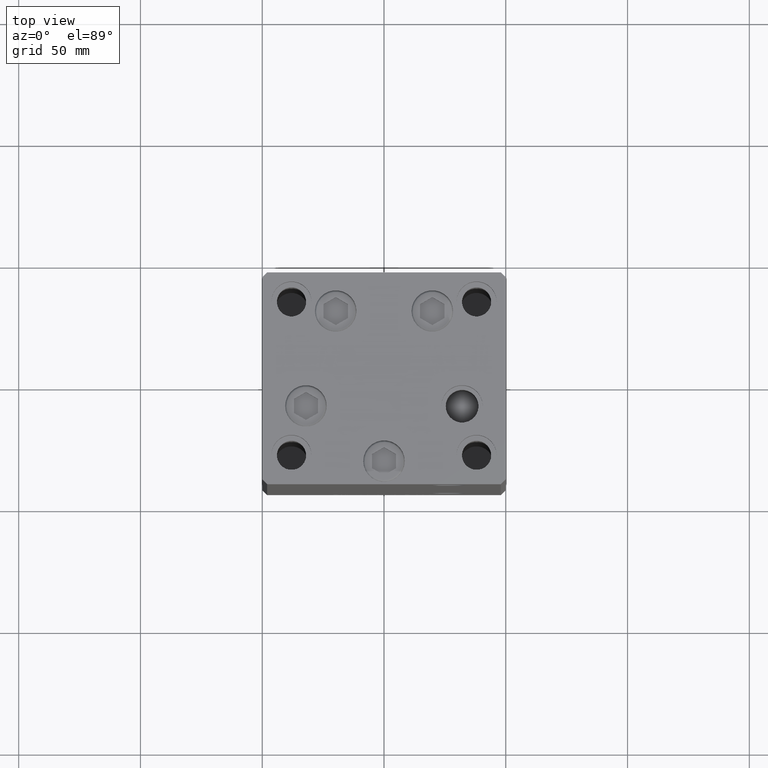
[diagram: clean part render]
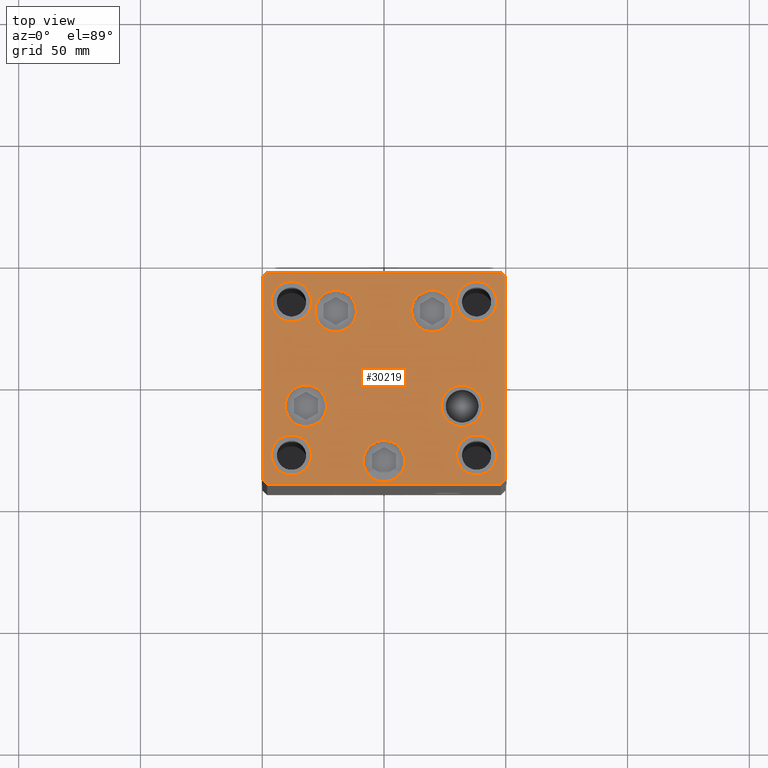
[diagram: same view with one face highlighted and labeled with its STEP entity id]
A machine part, top view. The second image highlights one B-rep face of the part: STEP entity #30219.
In plain terms, the highlighted planar face has unit normal (0, 0, 1).
Its self-contained STEP definition (entity closure, byte-faithful):
#55 = CIRCLE ( 'NONE', #24292, 8.250000000000000000 ) ;
#62 = DIRECTION ( 'NONE',  ( 0.000000000000000000, 0.000000000000000000, 1.000000000000000000 ) ) ;
#258 = AXIS2_PLACEMENT_3D ( 'NONE', #3070, #18521, #42330 ) ;
#315 = DIRECTION ( 'NONE',  ( 1.000000000000000000, 0.000000000000000000, 0.000000000000000000 ) ) ;
#360 = VERTEX_POINT ( 'NONE', #7000 ) ;
#675 = FACE_BOUND ( 'NONE', #30855, .T. ) ;
#854 = EDGE_CURVE ( 'NONE', #360, #29060, #4538, .T. ) ;
#1100 = ORIENTED_EDGE ( 'NONE', *, *, #14778, .F. ) ;
#1149 = CARTESIAN_POINT ( 'NONE',  ( -50.00000000000000711, 41.49999999999995026, 0.000000000000000000 ) ) ;
#1195 = CARTESIAN_POINT ( 'NONE',  ( -8.499999999999996447, -34.00000000000000000, 0.000000000000000000 ) ) ;
#1265 = LINE ( 'NONE', #35729, #32653 ) ;
#1282 = ORIENTED_EDGE ( 'NONE', *, *, #8682, .T. ) ;
#1328 = EDGE_CURVE ( 'NONE', #31632, #15303, #5542, .T. ) ;
#1591 = ORIENTED_EDGE ( 'NONE', *, *, #25779, .F. ) ;
#1670 = CARTESIAN_POINT ( 'NONE',  ( 0.000000000000000000, 0.000000000000000000, 0.000000000000000000 ) ) ;
#1814 = LINE ( 'NONE', #48183, #46747 ) ;
#1918 = DIRECTION ( 'NONE',  ( 1.000000000000000000, 0.000000000000000000, 0.000000000000000000 ) ) ;
#2348 = VERTEX_POINT ( 'NONE', #17151 ) ;
#2661 = CIRCLE ( 'NONE', #39997, 8.499999999999992895 ) ;
#2710 = ORIENTED_EDGE ( 'NONE', *, *, #35583, .T. ) ;
#2839 = ORIENTED_EDGE ( 'NONE', *, *, #38507, .T. ) ;
#2873 = ORIENTED_EDGE ( 'NONE', *, *, #33366, .T. ) ;
#2923 = DIRECTION ( 'NONE',  ( 1.000000000000000000, 0.000000000000000000, 0.000000000000000000 ) ) ;
#3070 = CARTESIAN_POINT ( 'NONE',  ( -37.99999999999999289, -31.50000000000000000, 0.000000000000000000 ) ) ;
#3541 = CARTESIAN_POINT ( 'NONE',  ( 19.82068048781373193, 27.62500000000000000, 0.000000000000000000 ) ) ;
#3869 = LINE ( 'NONE', #11453, #35056 ) ;
#4193 = EDGE_CURVE ( 'NONE', #45718, #31632, #1814, .T. ) ;
#4359 = EDGE_CURVE ( 'NONE', #37132, #27266, #34579, .T. ) ;
#4538 = CIRCLE ( 'NONE', #36925, 8.500000000000000000 ) ;
#4545 = EDGE_CURVE ( 'NONE', #38680, #49248, #34699, .T. ) ;
#4808 = CIRCLE ( 'NONE', #7268, 8.500000000000000000 ) ;
#4948 = DIRECTION ( 'NONE',  ( 8.360113137237628665E-17, -1.000000000000000000, 0.000000000000000000 ) ) ;
#5048 = DIRECTION ( 'NONE',  ( 0.000000000000000000, 0.000000000000000000, 1.000000000000000000 ) ) ;
#5097 = EDGE_CURVE ( 'NONE', #38868, #7001, #41932, .T. ) ;
#5109 = VERTEX_POINT ( 'NONE', #34095 ) ;
#5313 = DIRECTION ( 'NONE',  ( 0.000000000000000000, -0.000000000000000000, -1.000000000000000000 ) ) ;
#5478 = CARTESIAN_POINT ( 'NONE',  ( 47.99999999999990763, 43.50000000000000000, 0.000000000000000000 ) ) ;
#5542 = LINE ( 'NONE', #6044, #40966 ) ;
#5958 = CIRCLE ( 'NONE', #34269, 8.250000000000000000 ) ;
#6044 = CARTESIAN_POINT ( 'NONE',  ( 47.99999999999990763, 43.50000000000000000, 0.000000000000000000 ) ) ;
#6206 = DIRECTION ( 'NONE',  ( 0.000000000000000000, 0.000000000000000000, 1.000000000000000000 ) ) ;
#6294 = VECTOR ( 'NONE', #48957, 1000.000000000000114 ) ;
#6513 = CIRCLE ( 'NONE', #17052, 8.250000000000000000 ) ;
#6954 = ORIENTED_EDGE ( 'NONE', *, *, #46529, .T. ) ;
#7000 = CARTESIAN_POINT ( 'NONE',  ( -40.55550741379015278, -11.33333333333333925, 0.000000000000000000 ) ) ;
#7001 = VERTEX_POINT ( 'NONE', #28946 ) ;
#7268 = AXIS2_PLACEMENT_3D ( 'NONE', #22342, #18281, #29688 ) ;
#7381 = ORIENTED_EDGE ( 'NONE', *, *, #20745, .T. ) ;
#7400 = VERTEX_POINT ( 'NONE', #13674 ) ;
#7966 = CARTESIAN_POINT ( 'NONE',  ( 29.74999999999999645, -31.49999999999999289, 0.000000000000000000 ) ) ;
#8130 = DIRECTION ( 'NONE',  ( 0.000000000000000000, 0.000000000000000000, 1.000000000000000000 ) ) ;
#8253 = FACE_BOUND ( 'NONE', #23635, .T. ) ;
#8305 = EDGE_CURVE ( 'NONE', #23134, #9953, #29943, .T. ) ;
#8682 = EDGE_CURVE ( 'NONE', #15360, #23134, #24202, .T. ) ;
#8830 = ORIENTED_EDGE ( 'NONE', *, *, #14925, .F. ) ;
#9212 = AXIS2_PLACEMENT_3D ( 'NONE', #46111, #15934, #38257 ) ;
#9764 = AXIS2_PLACEMENT_3D ( 'NONE', #26898, #62, #41425 ) ;
#9953 = VERTEX_POINT ( 'NONE', #14499 ) ;
#10177 = CARTESIAN_POINT ( 'NONE',  ( 19.82068048781373193, 27.62500000000000000, 0.000000000000000000 ) ) ;
#11449 = DIRECTION ( 'NONE',  ( 1.000000000000000000, 0.000000000000000000, 0.000000000000000000 ) ) ;
#11453 = CARTESIAN_POINT ( 'NONE',  ( -48.00000000000000711, 43.49999999999996447, 0.000000000000000000 ) ) ;
#11625 = DIRECTION ( 'NONE',  ( 1.000000000000000000, 0.000000000000000000, 0.000000000000000000 ) ) ;
#11653 = DIRECTION ( 'NONE',  ( 0.000000000000000000, -0.000000000000000000, -1.000000000000000000 ) ) ;
#12060 = FACE_BOUND ( 'NONE', #24960, .T. ) ;
#12071 = CIRCLE ( 'NONE', #42844, 8.250000000000000000 ) ;
#12195 = EDGE_CURVE ( 'NONE', #26887, #23530, #12071, .T. ) ;
#12557 = DIRECTION ( 'NONE',  ( -0.000000000000000000, 0.000000000000000000, 1.000000000000000000 ) ) ;
#13237 = VERTEX_POINT ( 'NONE', #38837 ) ;
#13431 = ORIENTED_EDGE ( 'NONE', *, *, #37497, .F. ) ;
#13465 = DIRECTION ( 'NONE',  ( -0.7071067811865474617, 0.7071067811865474617, 0.000000000000000000 ) ) ;
#13674 = CARTESIAN_POINT ( 'NONE',  ( 8.500000000000003553, -34.00000000000000000, 0.000000000000000000 ) ) ;
#14162 = EDGE_LOOP ( 'NONE', ( #38097, #27137, #48968, #2873, #35607, #24124, #18479, #1282 ) ) ;
#14268 = DIRECTION ( 'NONE',  ( 0.000000000000000000, -0.000000000000000000, -1.000000000000000000 ) ) ;
#14375 = VECTOR ( 'NONE', #49907, 1000.000000000000000 ) ;
#14499 = CARTESIAN_POINT ( 'NONE',  ( -47.99999999999999289, -43.50000000000001421, 0.000000000000000000 ) ) ;
#14778 = EDGE_CURVE ( 'NONE', #18689, #2348, #6513, .T. ) ;
#14925 = EDGE_CURVE ( 'NONE', #5109, #45329, #18674, .T. ) ;
#14980 = DIRECTION ( 'NONE',  ( 1.000000000000000000, 0.000000000000000000, 0.000000000000000000 ) ) ;
#15303 = VERTEX_POINT ( 'NONE', #27026 ) ;
#15360 = VERTEX_POINT ( 'NONE', #22976 ) ;
#15400 = EDGE_LOOP ( 'NONE', ( #2839, #6954 ) ) ;
#15800 = CARTESIAN_POINT ( 'NONE',  ( 46.25000000000000000, -31.49999999999999289, 0.000000000000000000 ) ) ;
#15934 = DIRECTION ( 'NONE',  ( 0.000000000000000000, 0.000000000000000000, 1.000000000000000000 ) ) ;
#16317 = VERTEX_POINT ( 'NONE', #23972 ) ;
#17003 = CIRCLE ( 'NONE', #39632, 8.250000000000000000 ) ;
#17052 = AXIS2_PLACEMENT_3D ( 'NONE', #25219, #6206, #1918 ) ;
#17151 = CARTESIAN_POINT ( 'NONE',  ( -29.75000000000000000, 31.50000000000000000, 0.000000000000000000 ) ) ;
#17239 = DIRECTION ( 'NONE',  ( 0.000000000000000000, -0.000000000000000000, -1.000000000000000000 ) ) ;
#17791 = CARTESIAN_POINT ( 'NONE',  ( -50.00000000000000000, -41.50000000000000000, 0.000000000000000000 ) ) ;
#17980 = AXIS2_PLACEMENT_3D ( 'NONE', #1670, #12557, #43743 ) ;
#18281 = DIRECTION ( 'NONE',  ( 0.000000000000000000, -0.000000000000000000, -1.000000000000000000 ) ) ;
#18479 = ORIENTED_EDGE ( 'NONE', *, *, #37273, .T. ) ;
#18521 = DIRECTION ( 'NONE',  ( 0.000000000000000000, 0.000000000000000000, 1.000000000000000000 ) ) ;
#18584 = EDGE_LOOP ( 'NONE', ( #25459, #2710 ) ) ;
#18674 = CIRCLE ( 'NONE', #9764, 8.250000000000000000 ) ;
#18689 = VERTEX_POINT ( 'NONE', #46245 ) ;
#19132 = DIRECTION ( 'NONE',  ( 1.000000000000000000, 0.000000000000000000, 0.000000000000000000 ) ) ;
#19171 = CARTESIAN_POINT ( 'NONE',  ( -23.55550741379015278, -11.33333333333333748, 0.000000000000000000 ) ) ;
#19280 = EDGE_LOOP ( 'NONE', ( #39112, #32419 ) ) ;
#19326 = DIRECTION ( 'NONE',  ( 1.000000000000000000, 0.000000000000000000, 0.000000000000000000 ) ) ;
#20016 = CARTESIAN_POINT ( 'NONE',  ( 47.99999999999999289, -43.50000000000001421, 0.000000000000000000 ) ) ;
#20257 = CARTESIAN_POINT ( 'NONE',  ( 38.00000000000000000, 31.49999999999999289, 0.000000000000000000 ) ) ;
#20287 = DIRECTION ( 'NONE',  ( 1.000000000000000000, 0.000000000000000000, 0.000000000000000000 ) ) ;
#20319 = CARTESIAN_POINT ( 'NONE',  ( -19.82068048781373903, 27.62499999999999645, 0.000000000000000000 ) ) ;
#20381 = ORIENTED_EDGE ( 'NONE', *, *, #24749, .F. ) ;
#20421 = FACE_BOUND ( 'NONE', #49311, .T. ) ;
#20745 = EDGE_CURVE ( 'NONE', #7001, #38868, #4808, .T. ) ;
#21388 = CIRCLE ( 'NONE', #9212, 8.250000000000000000 ) ;
#22136 = EDGE_LOOP ( 'NONE', ( #13431, #37173 ) ) ;
#22342 = CARTESIAN_POINT ( 'NONE',  ( -19.82068048781373903, 27.62499999999999645, 0.000000000000000000 ) ) ;
#22925 = DIRECTION ( 'NONE',  ( 0.000000000000000000, 0.000000000000000000, 1.000000000000000000 ) ) ;
#22976 = CARTESIAN_POINT ( 'NONE',  ( -50.00000000000000711, 41.49999999999995026, 0.000000000000000000 ) ) ;
#23053 = ORIENTED_EDGE ( 'NONE', *, *, #47823, .F. ) ;
#23134 = VERTEX_POINT ( 'NONE', #17791 ) ;
#23360 = CARTESIAN_POINT ( 'NONE',  ( -47.99999999999999289, -43.50000000000001421, 0.000000000000000000 ) ) ;
#23530 = VERTEX_POINT ( 'NONE', #30372 ) ;
#23635 = EDGE_LOOP ( 'NONE', ( #20381, #1100 ) ) ;
#23802 = CARTESIAN_POINT ( 'NONE',  ( 47.99999999999999289, -43.50000000000001421, 0.000000000000000000 ) ) ;
#23928 = CARTESIAN_POINT ( 'NONE',  ( 29.74999999999999645, 31.49999999999999289, 0.000000000000000000 ) ) ;
#23972 = CARTESIAN_POINT ( 'NONE',  ( 28.32068048781373193, 27.62500000000000000, 0.000000000000000000 ) ) ;
#24124 = ORIENTED_EDGE ( 'NONE', *, *, #1328, .T. ) ;
#24202 = LINE ( 'NONE', #1149, #25713 ) ;
#24292 = AXIS2_PLACEMENT_3D ( 'NONE', #30525, #22925, #2923 ) ;
#24749 = EDGE_CURVE ( 'NONE', #2348, #18689, #17003, .T. ) ;
#24836 = CIRCLE ( 'NONE', #37130, 8.500000000000000000 ) ;
#24960 = EDGE_LOOP ( 'NONE', ( #23053, #1591 ) ) ;
#25219 = CARTESIAN_POINT ( 'NONE',  ( -38.00000000000000000, 31.50000000000000000, 0.000000000000000000 ) ) ;
#25416 = CIRCLE ( 'NONE', #38330, 8.500000000000000000 ) ;
#25459 = ORIENTED_EDGE ( 'NONE', *, *, #4359, .T. ) ;
#25634 = DIRECTION ( 'NONE',  ( 1.000000000000000000, 0.000000000000000000, 0.000000000000000000 ) ) ;
#25713 = VECTOR ( 'NONE', #4948, 1000.000000000000000 ) ;
#25779 = EDGE_CURVE ( 'NONE', #35343, #39534, #55, .T. ) ;
#26277 = EDGE_CURVE ( 'NONE', #9953, #38680, #27907, .T. ) ;
#26887 = VERTEX_POINT ( 'NONE', #23928 ) ;
#26898 = CARTESIAN_POINT ( 'NONE',  ( -37.99999999999999289, -31.50000000000000000, 0.000000000000000000 ) ) ;
#27026 = CARTESIAN_POINT ( 'NONE',  ( -48.00000000000000711, 43.49999999999996447, 0.000000000000000000 ) ) ;
#27137 = ORIENTED_EDGE ( 'NONE', *, *, #26277, .T. ) ;
#27266 = VERTEX_POINT ( 'NONE', #33231 ) ;
#27546 = CARTESIAN_POINT ( 'NONE',  ( -46.24999999999999289, -31.50000000000000000, 0.000000000000000000 ) ) ;
#27764 = PLANE ( 'NONE',  #17980 ) ;
#27907 = LINE ( 'NONE', #23360, #31603 ) ;
#28166 = DIRECTION ( 'NONE',  ( 0.000000000000000000, -0.000000000000000000, -1.000000000000000000 ) ) ;
#28268 = FACE_OUTER_BOUND ( 'NONE', #14162, .T. ) ;
#28615 = DIRECTION ( 'NONE',  ( 1.000000000000000000, 0.000000000000000000, 0.000000000000000000 ) ) ;
#28946 = CARTESIAN_POINT ( 'NONE',  ( -28.32068048781373903, 27.62499999999999645, 0.000000000000000000 ) ) ;
#29060 = VERTEX_POINT ( 'NONE', #19171 ) ;
#29688 = DIRECTION ( 'NONE',  ( 1.000000000000000000, 0.000000000000000000, 0.000000000000000000 ) ) ;
#29711 = EDGE_CURVE ( 'NONE', #13237, #16317, #31706, .T. ) ;
#29743 = AXIS2_PLACEMENT_3D ( 'NONE', #48676, #44881, #41566 ) ;
#29943 = LINE ( 'NONE', #45164, #6294 ) ;
#30219 = ADVANCED_FACE ( 'NONE', ( #20421, #36382, #31822, #35370, #675, #12060, #31577, #8253, #47041, #28268 ), #27764, .T. ) ;
#30372 = CARTESIAN_POINT ( 'NONE',  ( 46.25000000000000000, 31.49999999999999289, 0.000000000000000000 ) ) ;
#30525 = CARTESIAN_POINT ( 'NONE',  ( 38.00000000000000000, -31.49999999999999289, 0.000000000000000000 ) ) ;
#30855 = EDGE_LOOP ( 'NONE', ( #42991, #37200 ) ) ;
#31577 = FACE_BOUND ( 'NONE', #41106, .T. ) ;
#31603 = VECTOR ( 'NONE', #11449, 1000.000000000000000 ) ;
#31632 = VERTEX_POINT ( 'NONE', #5478 ) ;
#31706 = CIRCLE ( 'NONE', #34924, 8.500000000000000000 ) ;
#31822 = FACE_BOUND ( 'NONE', #18584, .T. ) ;
#32404 = DIRECTION ( 'NONE',  ( -1.000000000000000000, -3.614007241618350743E-16, 0.000000000000000000 ) ) ;
#32419 = ORIENTED_EDGE ( 'NONE', *, *, #39128, .T. ) ;
#32429 = ORIENTED_EDGE ( 'NONE', *, *, #33205, .F. ) ;
#32653 = VECTOR ( 'NONE', #47384, 1000.000000000000000 ) ;
#32789 = CARTESIAN_POINT ( 'NONE',  ( 23.55550741379015633, -11.33333333333333037, 0.000000000000000000 ) ) ;
#33205 = EDGE_CURVE ( 'NONE', #45329, #5109, #43949, .T. ) ;
#33231 = CARTESIAN_POINT ( 'NONE',  ( 40.55550741379014568, -11.33333333333332860, 0.000000000000000000 ) ) ;
#33329 = CARTESIAN_POINT ( 'NONE',  ( 50.00000000000000000, -41.49999999999999289, 0.000000000000000000 ) ) ;
#33366 = EDGE_CURVE ( 'NONE', #49248, #45718, #1265, .T. ) ;
#34095 = CARTESIAN_POINT ( 'NONE',  ( -29.74999999999999289, -31.50000000000000000, 0.000000000000000000 ) ) ;
#34269 = AXIS2_PLACEMENT_3D ( 'NONE', #20257, #5048, #28615 ) ;
#34579 = CIRCLE ( 'NONE', #29743, 8.499999999999992895 ) ;
#34699 = LINE ( 'NONE', #23802, #14375 ) ;
#34924 = AXIS2_PLACEMENT_3D ( 'NONE', #3541, #46861, #11625 ) ;
#35056 = VECTOR ( 'NONE', #43137, 1000.000000000000000 ) ;
#35343 = VERTEX_POINT ( 'NONE', #7966 ) ;
#35370 = FACE_BOUND ( 'NONE', #15400, .T. ) ;
#35583 = EDGE_CURVE ( 'NONE', #27266, #37132, #2661, .T. ) ;
#35607 = ORIENTED_EDGE ( 'NONE', *, *, #4193, .T. ) ;
#35729 = CARTESIAN_POINT ( 'NONE',  ( 50.00000000000000000, -41.49999999999999289, 0.000000000000000000 ) ) ;
#35945 = AXIS2_PLACEMENT_3D ( 'NONE', #10177, #37063, #25634 ) ;
#35976 = CARTESIAN_POINT ( 'NONE',  ( 32.05550741379015278, -11.33333333333333037, 0.000000000000000000 ) ) ;
#35979 = CIRCLE ( 'NONE', #48143, 8.500000000000000000 ) ;
#36382 = FACE_BOUND ( 'NONE', #19280, .T. ) ;
#36925 = AXIS2_PLACEMENT_3D ( 'NONE', #48977, #14268, #315 ) ;
#37063 = DIRECTION ( 'NONE',  ( 0.000000000000000000, -0.000000000000000000, -1.000000000000000000 ) ) ;
#37130 = AXIS2_PLACEMENT_3D ( 'NONE', #47771, #39909, #44226 ) ;
#37132 = VERTEX_POINT ( 'NONE', #32789 ) ;
#37173 = ORIENTED_EDGE ( 'NONE', *, *, #12195, .F. ) ;
#37192 = ORIENTED_EDGE ( 'NONE', *, *, #5097, .T. ) ;
#37200 = ORIENTED_EDGE ( 'NONE', *, *, #39867, .T. ) ;
#37273 = EDGE_CURVE ( 'NONE', #15303, #15360, #3869, .T. ) ;
#37497 = EDGE_CURVE ( 'NONE', #23530, #26887, #5958, .T. ) ;
#38097 = ORIENTED_EDGE ( 'NONE', *, *, #8305, .T. ) ;
#38257 = DIRECTION ( 'NONE',  ( 1.000000000000000000, 0.000000000000000000, 0.000000000000000000 ) ) ;
#38330 = AXIS2_PLACEMENT_3D ( 'NONE', #49682, #11653, #14980 ) ;
#38369 = CIRCLE ( 'NONE', #35945, 8.500000000000000000 ) ;
#38507 = EDGE_CURVE ( 'NONE', #45352, #7400, #25416, .T. ) ;
#38680 = VERTEX_POINT ( 'NONE', #20016 ) ;
#38837 = CARTESIAN_POINT ( 'NONE',  ( 11.32068048781373015, 27.62500000000000000, 0.000000000000000000 ) ) ;
#38868 = VERTEX_POINT ( 'NONE', #47830 ) ;
#39112 = ORIENTED_EDGE ( 'NONE', *, *, #29711, .T. ) ;
#39128 = EDGE_CURVE ( 'NONE', #16317, #13237, #38369, .T. ) ;
#39298 = CARTESIAN_POINT ( 'NONE',  ( -38.00000000000000000, 31.50000000000000000, 0.000000000000000000 ) ) ;
#39534 = VERTEX_POINT ( 'NONE', #15800 ) ;
#39542 = DIRECTION ( 'NONE',  ( 1.000000000000000000, 0.000000000000000000, 0.000000000000000000 ) ) ;
#39632 = AXIS2_PLACEMENT_3D ( 'NONE', #39298, #8130, #39542 ) ;
#39797 = CARTESIAN_POINT ( 'NONE',  ( -32.05550741379015278, -11.33333333333333925, 0.000000000000000000 ) ) ;
#39867 = EDGE_CURVE ( 'NONE', #29060, #360, #35979, .T. ) ;
#39909 = DIRECTION ( 'NONE',  ( 0.000000000000000000, -0.000000000000000000, -1.000000000000000000 ) ) ;
#39997 = AXIS2_PLACEMENT_3D ( 'NONE', #35976, #5313, #19326 ) ;
#40966 = VECTOR ( 'NONE', #32404, 1000.000000000000000 ) ;
#41106 = EDGE_LOOP ( 'NONE', ( #8830, #32429 ) ) ;
#41115 = AXIS2_PLACEMENT_3D ( 'NONE', #20319, #28166, #19132 ) ;
#41425 = DIRECTION ( 'NONE',  ( 1.000000000000000000, 0.000000000000000000, 0.000000000000000000 ) ) ;
#41566 = DIRECTION ( 'NONE',  ( 1.000000000000000000, 0.000000000000000000, 0.000000000000000000 ) ) ;
#41932 = CIRCLE ( 'NONE', #41115, 8.500000000000000000 ) ;
#42330 = DIRECTION ( 'NONE',  ( 1.000000000000000000, 0.000000000000000000, 0.000000000000000000 ) ) ;
#42844 = AXIS2_PLACEMENT_3D ( 'NONE', #47423, #48433, #43886 ) ;
#42991 = ORIENTED_EDGE ( 'NONE', *, *, #854, .T. ) ;
#43137 = DIRECTION ( 'NONE',  ( -0.7071067811865463515, -0.7071067811865487940, 0.000000000000000000 ) ) ;
#43743 = DIRECTION ( 'NONE',  ( 1.000000000000000000, 0.000000000000000000, 0.000000000000000000 ) ) ;
#43886 = DIRECTION ( 'NONE',  ( 1.000000000000000000, 0.000000000000000000, 0.000000000000000000 ) ) ;
#43949 = CIRCLE ( 'NONE', #258, 8.250000000000000000 ) ;
#44226 = DIRECTION ( 'NONE',  ( 1.000000000000000000, 0.000000000000000000, 0.000000000000000000 ) ) ;
#44469 = CARTESIAN_POINT ( 'NONE',  ( 49.99999999999992184, 41.49999999999998579, 0.000000000000000000 ) ) ;
#44881 = DIRECTION ( 'NONE',  ( 0.000000000000000000, -0.000000000000000000, -1.000000000000000000 ) ) ;
#45164 = CARTESIAN_POINT ( 'NONE',  ( -50.00000000000000000, -41.50000000000000000, 0.000000000000000000 ) ) ;
#45329 = VERTEX_POINT ( 'NONE', #27546 ) ;
#45352 = VERTEX_POINT ( 'NONE', #1195 ) ;
#45718 = VERTEX_POINT ( 'NONE', #44469 ) ;
#46111 = CARTESIAN_POINT ( 'NONE',  ( 38.00000000000000000, -31.49999999999999289, 0.000000000000000000 ) ) ;
#46245 = CARTESIAN_POINT ( 'NONE',  ( -46.25000000000000000, 31.50000000000000000, 0.000000000000000000 ) ) ;
#46529 = EDGE_CURVE ( 'NONE', #7400, #45352, #24836, .T. ) ;
#46747 = VECTOR ( 'NONE', #13465, 1000.000000000000114 ) ;
#46861 = DIRECTION ( 'NONE',  ( 0.000000000000000000, -0.000000000000000000, -1.000000000000000000 ) ) ;
#47041 = FACE_BOUND ( 'NONE', #22136, .T. ) ;
#47384 = DIRECTION ( 'NONE',  ( -1.003213576468515193E-15, 1.000000000000000000, 0.000000000000000000 ) ) ;
#47423 = CARTESIAN_POINT ( 'NONE',  ( 38.00000000000000000, 31.49999999999999289, 0.000000000000000000 ) ) ;
#47771 = CARTESIAN_POINT ( 'NONE',  ( 4.163799117101000559E-15, -34.00000000000000000, 0.000000000000000000 ) ) ;
#47823 = EDGE_CURVE ( 'NONE', #39534, #35343, #21388, .T. ) ;
#47830 = CARTESIAN_POINT ( 'NONE',  ( -11.32068048781373726, 27.62499999999999645, 0.000000000000000000 ) ) ;
#48143 = AXIS2_PLACEMENT_3D ( 'NONE', #39797, #17239, #20287 ) ;
#48183 = CARTESIAN_POINT ( 'NONE',  ( 49.99999999999992184, 41.49999999999998579, 0.000000000000000000 ) ) ;
#48433 = DIRECTION ( 'NONE',  ( 0.000000000000000000, 0.000000000000000000, 1.000000000000000000 ) ) ;
#48676 = CARTESIAN_POINT ( 'NONE',  ( 32.05550741379015278, -11.33333333333333037, 0.000000000000000000 ) ) ;
#48957 = DIRECTION ( 'NONE',  ( 0.7071067811865474617, -0.7071067811865474617, 0.000000000000000000 ) ) ;
#48968 = ORIENTED_EDGE ( 'NONE', *, *, #4545, .T. ) ;
#48977 = CARTESIAN_POINT ( 'NONE',  ( -32.05550741379015278, -11.33333333333333925, 0.000000000000000000 ) ) ;
#49248 = VERTEX_POINT ( 'NONE', #33329 ) ;
#49311 = EDGE_LOOP ( 'NONE', ( #7381, #37192 ) ) ;
#49682 = CARTESIAN_POINT ( 'NONE',  ( 4.163799117101000559E-15, -34.00000000000000000, 0.000000000000000000 ) ) ;
#49907 = DIRECTION ( 'NONE',  ( 0.7071067811865463515, 0.7071067811865487940, 0.000000000000000000 ) ) ;